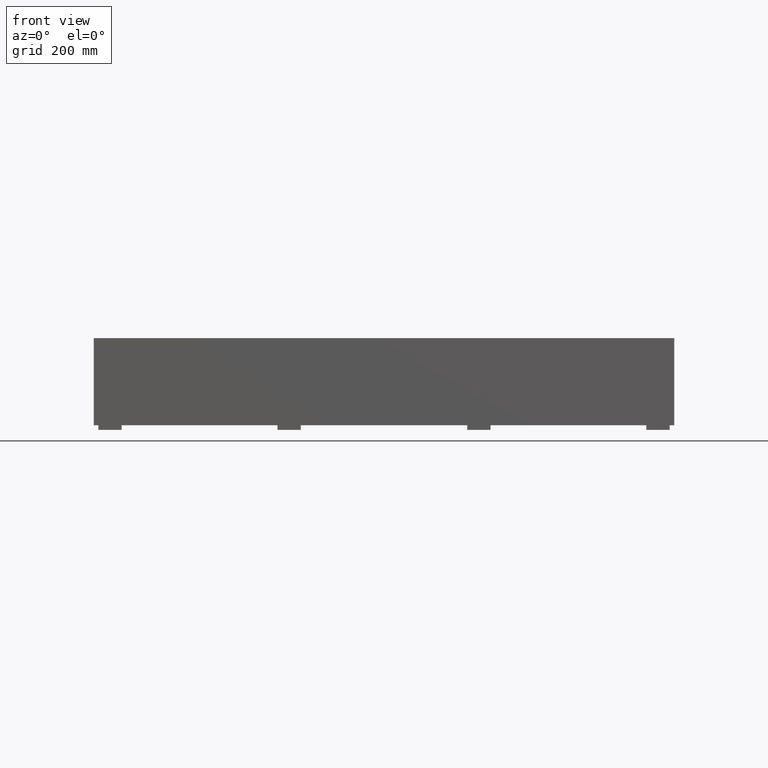
[diagram: clean part render]
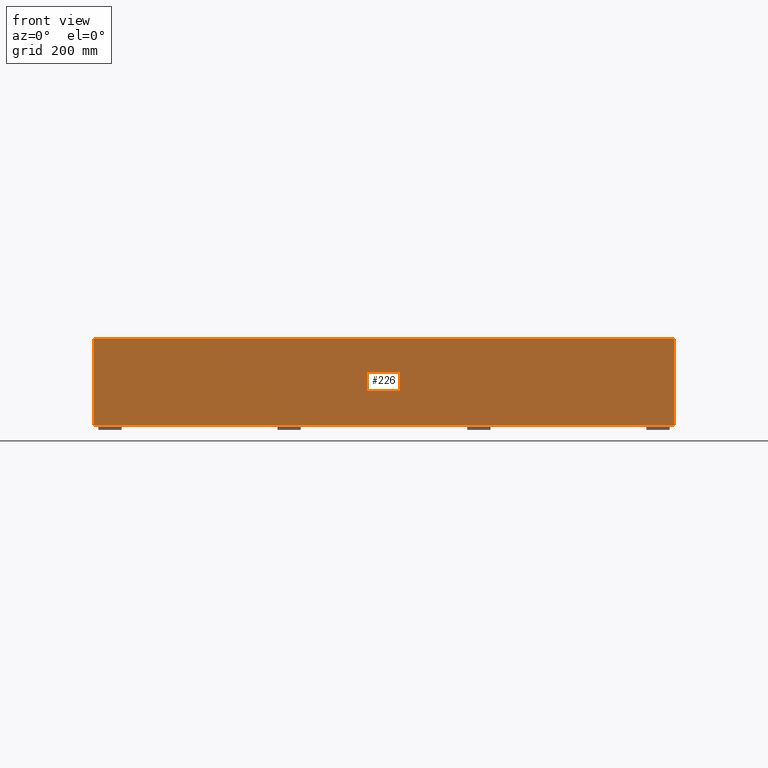
[diagram: same view with one face highlighted and labeled with its STEP entity id]
A machine part, front view. The second image highlights one B-rep face of the part: STEP entity #226.
In plain terms, the highlighted planar face has unit normal (0, 1, 0).
Its self-contained STEP definition (entity closure, byte-faithful):
#226 = ADVANCED_FACE ( 'NONE', ( #13239 ), #976, .F. ) ;
#976 = PLANE ( 'NONE',  #8613 ) ;
#1604 = ORIENTED_EDGE ( 'NONE', *, *, #3279, .F. ) ;
#1837 = EDGE_CURVE ( 'NONE', #4458, #6445, #17323, .T. ) ;
#1999 = VERTEX_POINT ( 'NONE', #4610 ) ;
#2285 = VECTOR ( 'NONE', #10535, 1000.000000000000000 ) ;
#3279 = EDGE_CURVE ( 'NONE', #14816, #1999, #16931, .T. ) ;
#3620 = VECTOR ( 'NONE', #16459, 1000.000000000000000 ) ;
#3700 = ORIENTED_EDGE ( 'NONE', *, *, #1837, .F. ) ;
#4458 = VERTEX_POINT ( 'NONE', #8149 ) ;
#4483 = CARTESIAN_POINT ( 'NONE',  ( 0.0000000000000000000, 0.0000000000000000000, 0.0000000000000000000 ) ) ;
#4610 = CARTESIAN_POINT ( 'NONE',  ( 1000.000000000000000, 0.0000000000000000000, -150.0000000000000000 ) ) ;
#4673 = ORIENTED_EDGE ( 'NONE', *, *, #10138, .F. ) ;
#4687 = CARTESIAN_POINT ( 'NONE',  ( 1000.000000000000000, 0.0000000000000000000, -150.0000000000000000 ) ) ;
#5081 = CARTESIAN_POINT ( 'NONE',  ( 0.0000000000000000000, 0.0000000000000000000, -150.0000000000000000 ) ) ;
#5556 = LINE ( 'NONE', #11012, #3620 ) ;
#6445 = VERTEX_POINT ( 'NONE', #10956 ) ;
#6446 = CARTESIAN_POINT ( 'NONE',  ( 0.0000000000000000000, 0.0000000000000000000, 0.0000000000000000000 ) ) ;
#8149 = CARTESIAN_POINT ( 'NONE',  ( 0.0000000000000000000, 0.0000000000000000000, -150.0000000000000000 ) ) ;
#8613 = AXIS2_PLACEMENT_3D ( 'NONE', #6446, #11895, #17342 ) ;
#9522 = VECTOR ( 'NONE', #10137, 1000.000000000000000 ) ;
#9835 = VECTOR ( 'NONE', #9940, 1000.000000000000000 ) ;
#9940 = DIRECTION ( 'NONE',  ( 1.000000000000000000, 0.0000000000000000000, 0.0000000000000000000 ) ) ;
#10137 = DIRECTION ( 'NONE',  ( -0.0000000000000000000, -0.0000000000000000000, -1.000000000000000000 ) ) ;
#10138 = EDGE_CURVE ( 'NONE', #6445, #14816, #16731, .T. ) ;
#10535 = DIRECTION ( 'NONE',  ( 0.0000000000000000000, 0.0000000000000000000, 1.000000000000000000 ) ) ;
#10867 = EDGE_LOOP ( 'NONE', ( #3700, #17217, #1604, #4673 ) ) ;
#10956 = CARTESIAN_POINT ( 'NONE',  ( 0.0000000000000000000, 0.0000000000000000000, 0.0000000000000000000 ) ) ;
#11012 = CARTESIAN_POINT ( 'NONE',  ( 0.0000000000000000000, 0.0000000000000000000, -150.0000000000000000 ) ) ;
#11895 = DIRECTION ( 'NONE',  ( 0.0000000000000000000, 1.000000000000000000, 0.0000000000000000000 ) ) ;
#13239 = FACE_OUTER_BOUND ( 'NONE', #10867, .T. ) ;
#13665 = EDGE_CURVE ( 'NONE', #1999, #4458, #5556, .T. ) ;
#14816 = VERTEX_POINT ( 'NONE', #17678 ) ;
#16459 = DIRECTION ( 'NONE',  ( -1.000000000000000000, -0.0000000000000000000, -0.0000000000000000000 ) ) ;
#16731 = LINE ( 'NONE', #4483, #9835 ) ;
#16931 = LINE ( 'NONE', #4687, #9522 ) ;
#17217 = ORIENTED_EDGE ( 'NONE', *, *, #13665, .F. ) ;
#17323 = LINE ( 'NONE', #5081, #2285 ) ;
#17342 = DIRECTION ( 'NONE',  ( 0.0000000000000000000, -0.0000000000000000000, 1.000000000000000000 ) ) ;
#17678 = CARTESIAN_POINT ( 'NONE',  ( 1000.000000000000000, 0.0000000000000000000, 0.0000000000000000000 ) ) ;